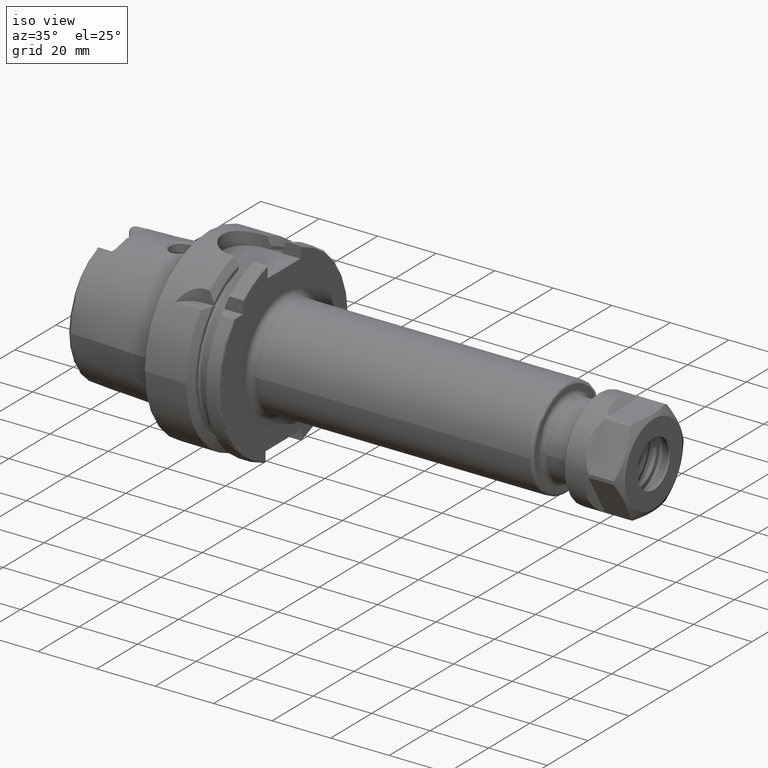
[diagram: clean part render]
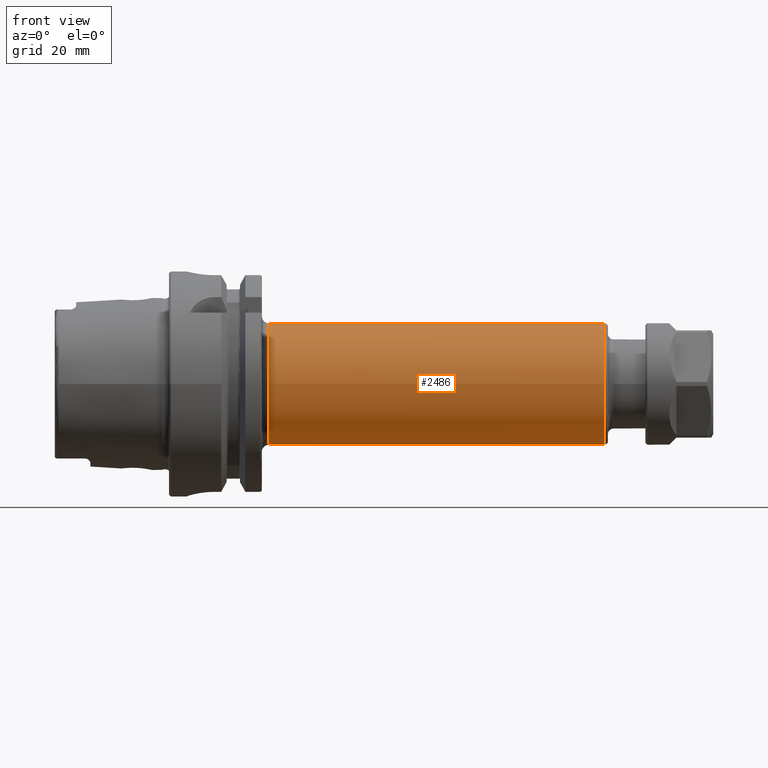
[diagram: tour spotlight — one face highlighted and labeled with its STEP entity id]
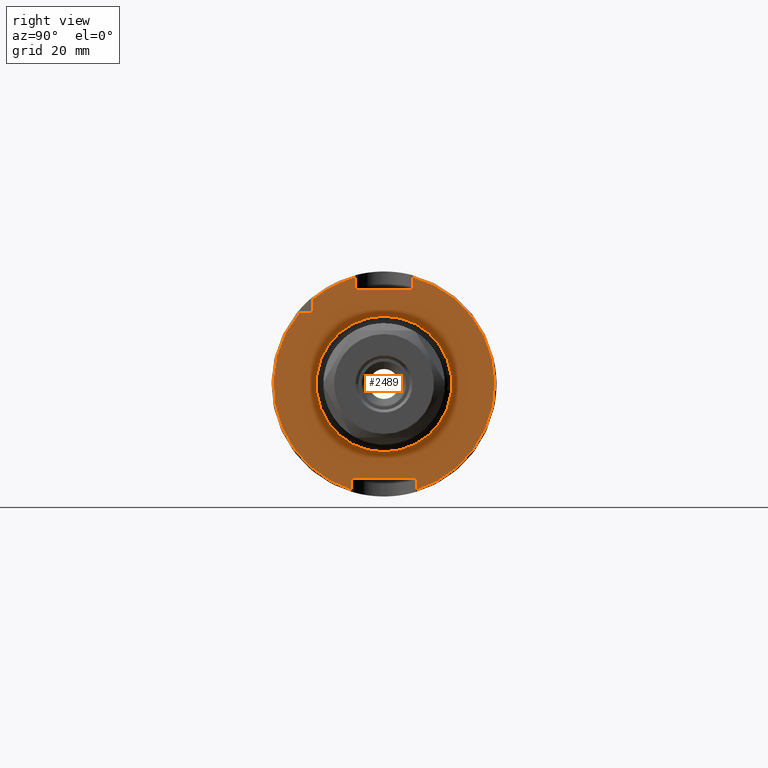
[diagram: tour spotlight — one face highlighted and labeled with its STEP entity id]
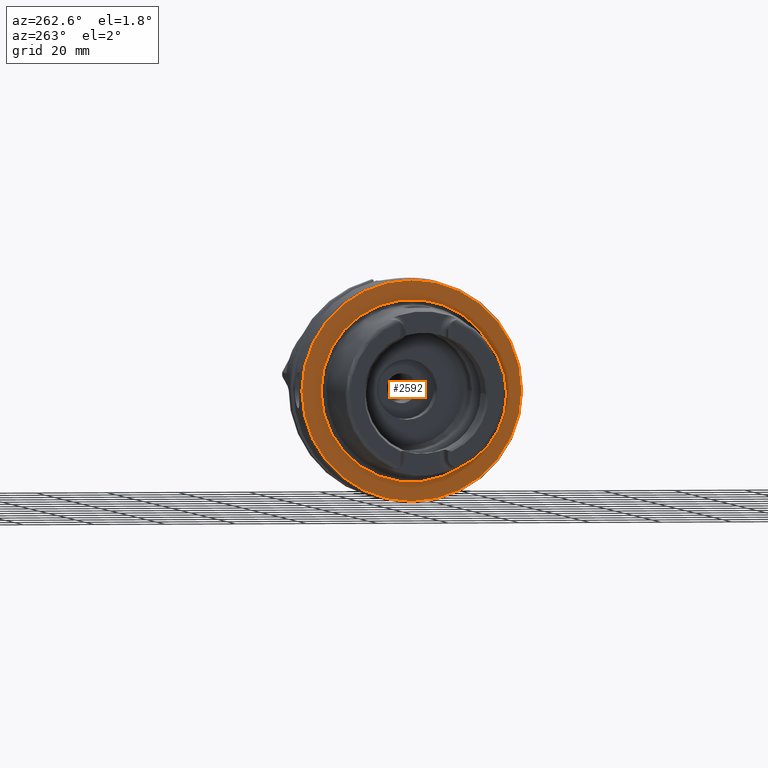
[diagram: tour spotlight — one face highlighted and labeled with its STEP entity id]
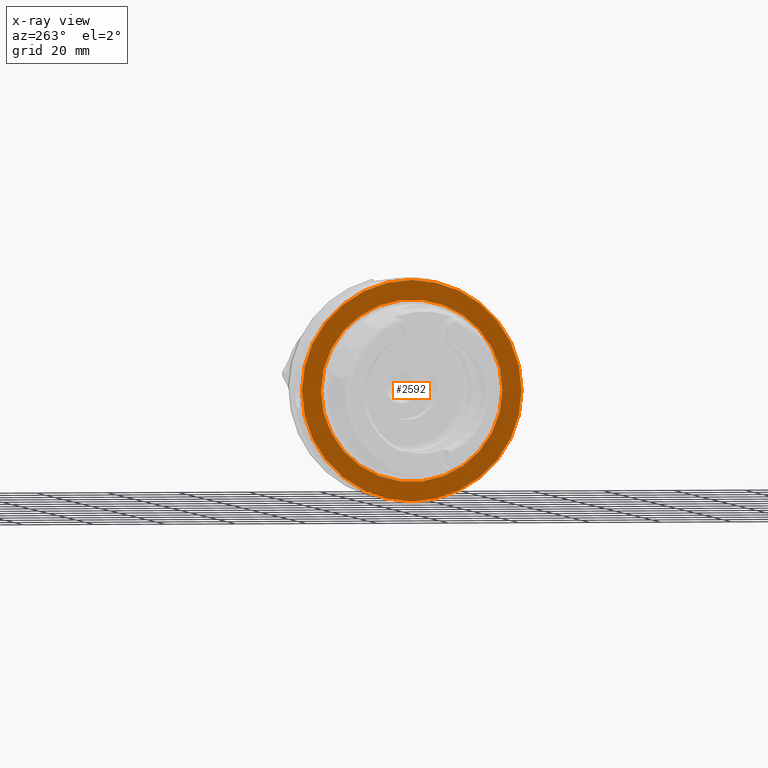
[diagram: x-ray of the same camera — body ghosted, this tour face saturated]
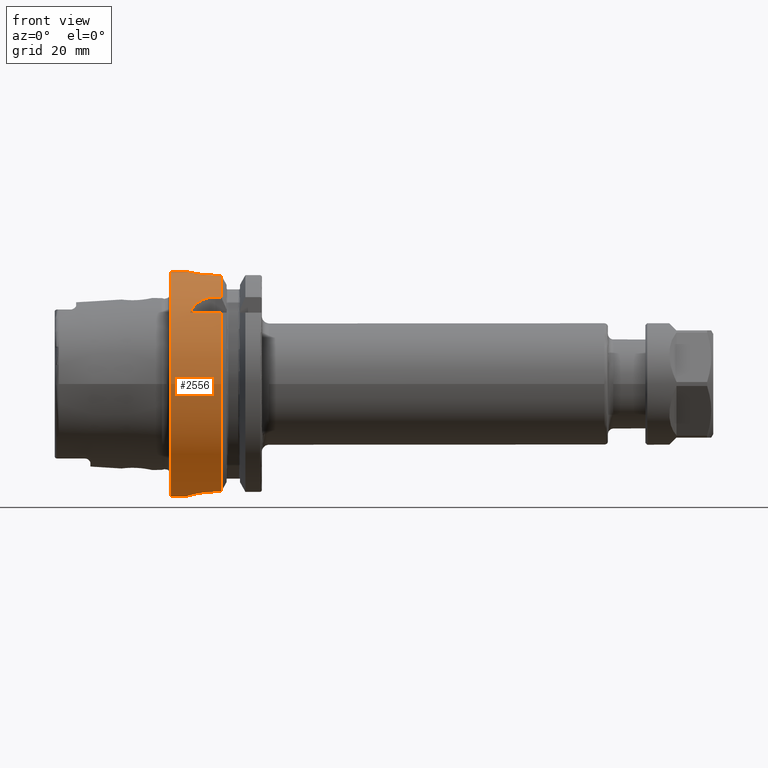
[diagram: tour spotlight — one face highlighted and labeled with its STEP entity id]
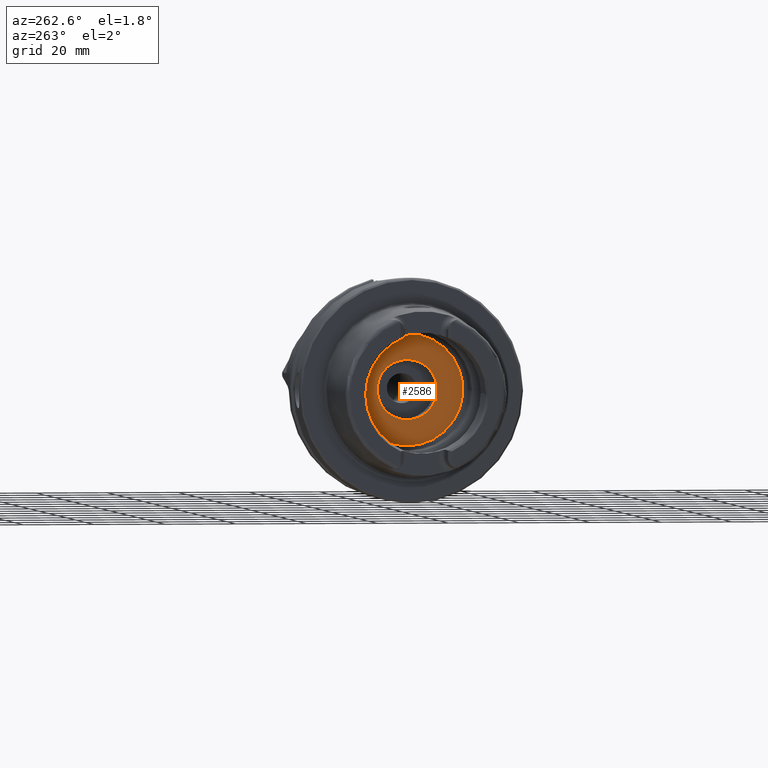
[diagram: tour spotlight — one face highlighted and labeled with its STEP entity id]
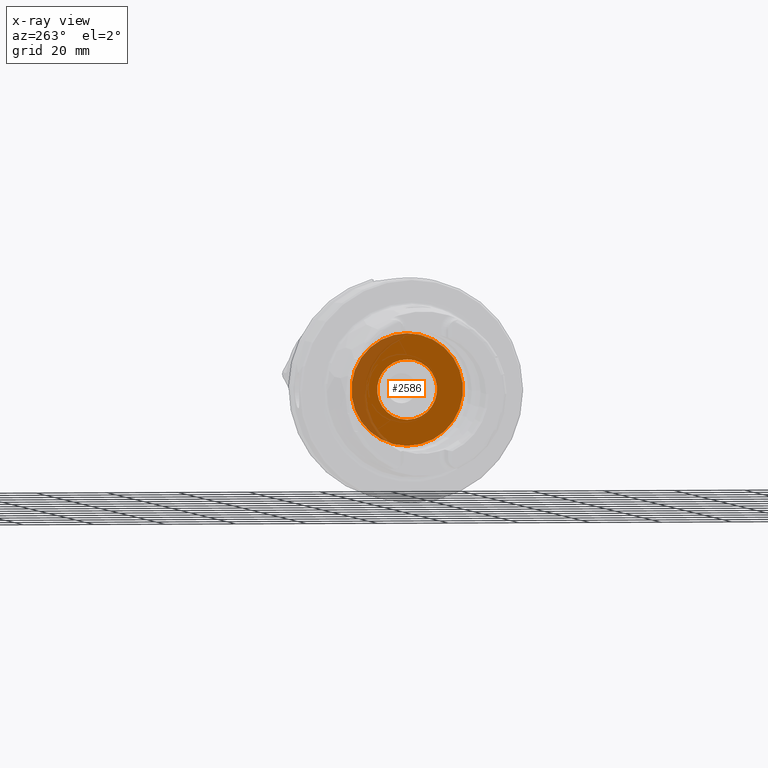
[diagram: x-ray of the same camera — body ghosted, this tour face saturated]
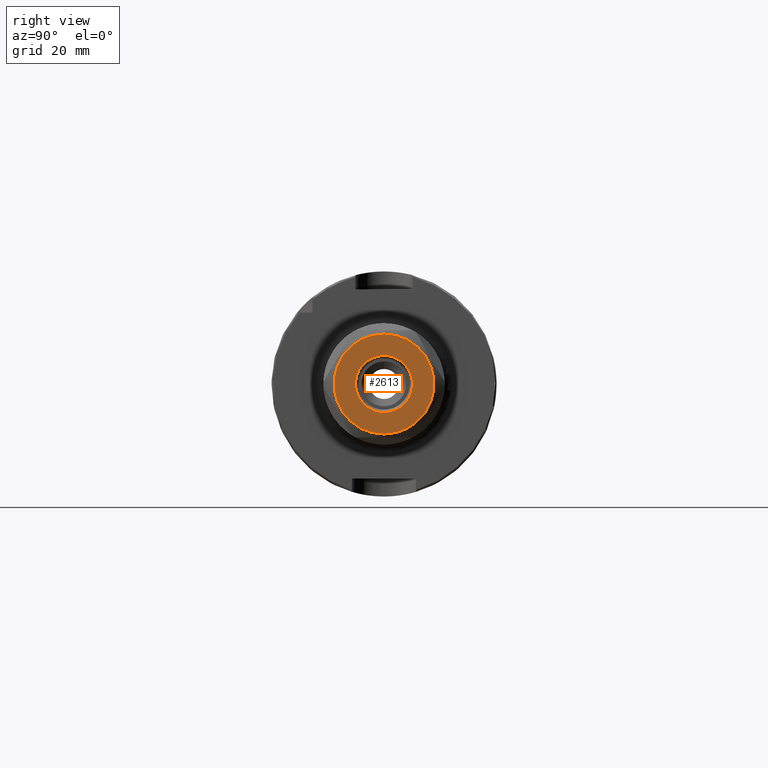
[diagram: tour spotlight — one face highlighted and labeled with its STEP entity id]
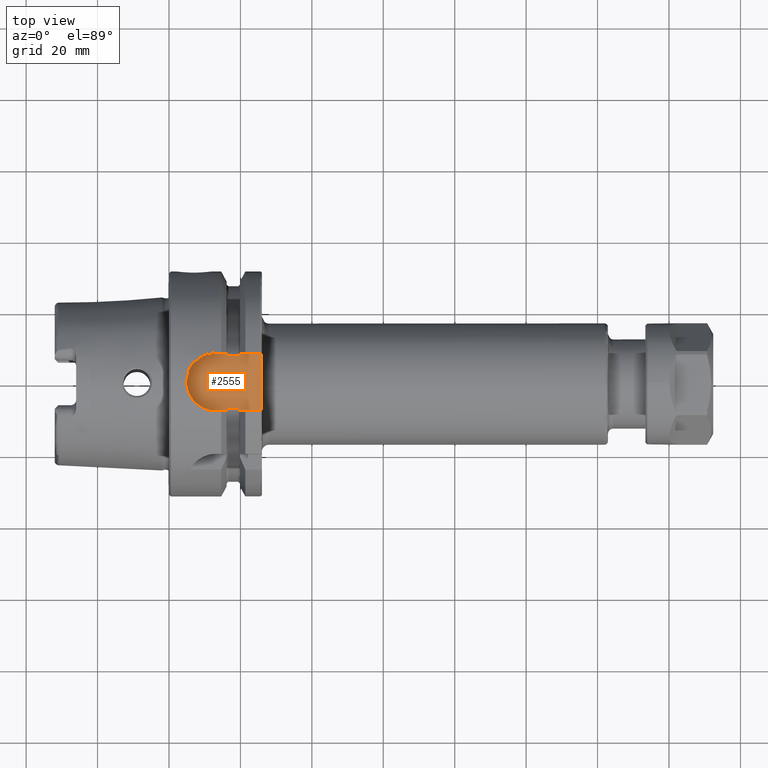
[diagram: tour spotlight — one face highlighted and labeled with its STEP entity id]
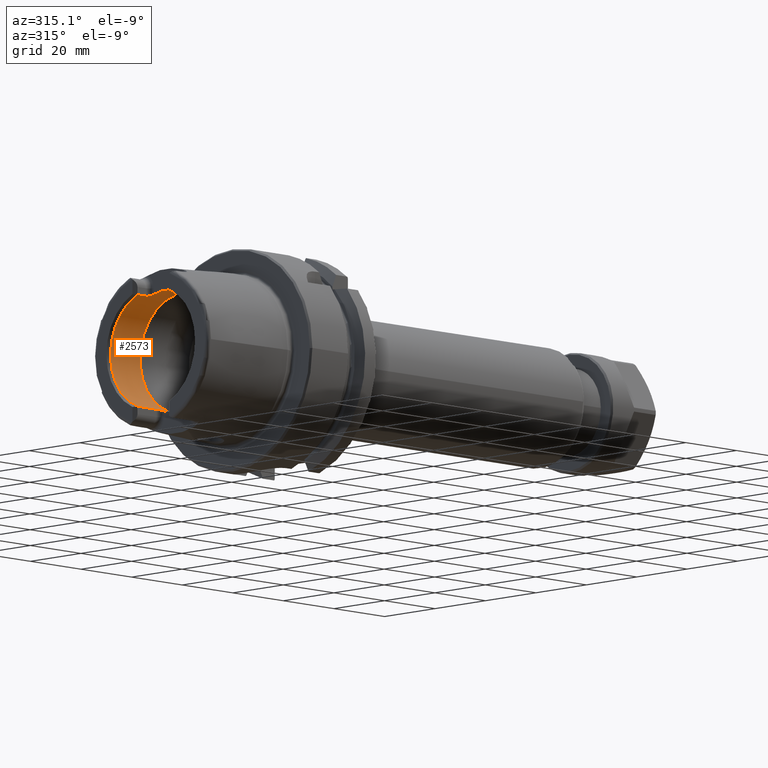
[diagram: tour spotlight — one face highlighted and labeled with its STEP entity id]
A machine part: a face-by-face anatomy tour. The part has 149 B-rep faces; the first image is the clean iso view, then the 8 largest visible faces are spotlighted one at a time (largest first), each with its STEP entity span.

Face 1 — front view, entity #2486. In plain terms, the highlighted cylindrical surface (bore or boss wall) has radius 17 mm, axis along (1, 0, 0).
Definition (entity closure, byte-faithful):
#289=FACE_OUTER_BOUND('',#440,.T.);
#440=EDGE_LOOP('',(#1699,#1700,#1701,#1702,#1703,#1704));
#602=LINE('',#3856,#738);
#738=VECTOR('',#3083,17.);
#882=CIRCLE('',#2722,17.);
#883=CIRCLE('',#2723,17.);
#885=CIRCLE('',#2727,17.);
#886=CIRCLE('',#2728,17.);
#1038=VERTEX_POINT('',#3846);
#1039=VERTEX_POINT('',#3848);
#1041=VERTEX_POINT('',#3855);
#1042=VERTEX_POINT('',#3857);
#1296=EDGE_CURVE('',#1038,#1039,#882,.T.);
#1297=EDGE_CURVE('',#1039,#1038,#883,.T.);
#1299=EDGE_CURVE('',#1039,#1041,#602,.T.);
#1300=EDGE_CURVE('',#1042,#1041,#885,.T.);
#1301=EDGE_CURVE('',#1041,#1042,#886,.T.);
#1699=ORIENTED_EDGE('',*,*,#1297,.F.);
#1700=ORIENTED_EDGE('',*,*,#1299,.T.);
#1701=ORIENTED_EDGE('',*,*,#1300,.F.);
#1702=ORIENTED_EDGE('',*,*,#1301,.F.);
#1703=ORIENTED_EDGE('',*,*,#1299,.F.);
#1704=ORIENTED_EDGE('',*,*,#1296,.F.);
#2440=CYLINDRICAL_SURFACE('',#2726,17.);
#2486=ADVANCED_FACE('',(#289),#2440,.T.);
#2722=AXIS2_PLACEMENT_3D('',#3849,#3073,#3074);
#2723=AXIS2_PLACEMENT_3D('',#3850,#3075,#3076);
#2726=AXIS2_PLACEMENT_3D('',#3854,#3081,#3082);
#2727=AXIS2_PLACEMENT_3D('',#3858,#3084,#3085);
#2728=AXIS2_PLACEMENT_3D('',#3859,#3086,#3087);
#3073=DIRECTION('center_axis',(1.,0.,0.));
#3074=DIRECTION('ref_axis',(0.,-1.,1.83697019872103E-16));
#3075=DIRECTION('center_axis',(1.,0.,0.));
#3076=DIRECTION('ref_axis',(0.,-1.,1.83697019872103E-16));
#3081=DIRECTION('center_axis',(1.,0.,0.));
#3082=DIRECTION('ref_axis',(0.,1.,0.));
#3083=DIRECTION('',(-1.,0.,0.));
#3084=DIRECTION('center_axis',(-1.,0.,0.));
#3085=DIRECTION('ref_axis',(0.,-1.,-1.22464679914735E-16));
#3086=DIRECTION('center_axis',(-1.,0.,0.));
#3087=DIRECTION('ref_axis',(0.,-1.,-1.22464679914735E-16));
#3846=CARTESIAN_POINT('',(121.9,-2.0818995585505E-15,17.));
#3848=CARTESIAN_POINT('',(121.9,-17.,-2.0818995585505E-15));
#3849=CARTESIAN_POINT('Origin',(121.9,0.,0.));
#3850=CARTESIAN_POINT('Origin',(121.9,0.,0.));
#3854=CARTESIAN_POINT('Origin',(74.45,0.,0.));
#3855=CARTESIAN_POINT('',(28.,-17.,-2.0818995585505E-15));
#3856=CARTESIAN_POINT('',(74.45,-17.,-2.0818995585505E-15));
#3857=CARTESIAN_POINT('',(28.,-2.0818995585505E-15,-17.));
#3858=CARTESIAN_POINT('Origin',(28.,0.,0.));
#3859=CARTESIAN_POINT('Origin',(28.,0.,0.));

Face 2 — right view, entity #2489. In plain terms, the highlighted planar face has unit normal (1, 0, 0).
Definition (entity closure, byte-faithful):
#184=FACE_BOUND('',#444,.T.);
#202=PLANE('',#2734);
#292=FACE_OUTER_BOUND('',#443,.T.);
#443=EDGE_LOOP('',(#1715,#1716,#1717,#1718,#1719,#1720,#1721,#1722,#1723,
#1724,#1725));
#444=EDGE_LOOP('',(#1726));
#603=LINE('',#3869,#739);
#604=LINE('',#3873,#740);
#605=LINE('',#3875,#741);
#606=LINE('',#3877,#742);
#607=LINE('',#3881,#743);
#608=LINE('',#3883,#744);
#609=LINE('',#3885,#745);
#610=LINE('',#3888,#746);
#739=VECTOR('',#3100,10.);
#740=VECTOR('',#3103,10.);
#741=VECTOR('',#3104,10.);
#742=VECTOR('',#3105,10.);
#743=VECTOR('',#3108,10.);
#744=VECTOR('',#3109,10.);
#745=VECTOR('',#3110,10.);
#746=VECTOR('',#3113,10.);
#889=CIRCLE('',#2733,19.);
#890=CIRCLE('',#2735,31.);
#891=CIRCLE('',#2736,31.);
#892=CIRCLE('',#2737,31.);
#1043=VERTEX_POINT('',#3863);
#1044=VERTEX_POINT('',#3867);
#1045=VERTEX_POINT('',#3868);
#1046=VERTEX_POINT('',#3870);
#1047=VERTEX_POINT('',#3872);
#1048=VERTEX_POINT('',#3874);
#1049=VERTEX_POINT('',#3876);
#1050=VERTEX_POINT('',#3878);
#1051=VERTEX_POINT('',#3880);
#1052=VERTEX_POINT('',#3882);
#1053=VERTEX_POINT('',#3884);
#1054=VERTEX_POINT('',#3886);
#1304=EDGE_CURVE('',#1043,#1043,#889,.T.);
#1305=EDGE_CURVE('',#1044,#1045,#603,.T.);
#1306=EDGE_CURVE('',#1045,#1046,#890,.T.);
#1307=EDGE_CURVE('',#1046,#1047,#604,.T.);
#1308=EDGE_CURVE('',#1047,#1048,#605,.T.);
#1309=EDGE_CURVE('',#1048,#1049,#606,.T.);
#1310=EDGE_CURVE('',#1049,#1050,#891,.T.);
#1311=EDGE_CURVE('',#1050,#1051,#607,.T.);
#1312=EDGE_CURVE('',#1051,#1052,#608,.T.);
#1313=EDGE_CURVE('',#1052,#1053,#609,.T.);
#1314=EDGE_CURVE('',#1053,#1054,#892,.T.);
#1315=EDGE_CURVE('',#1054,#1044,#610,.T.);
#1715=ORIENTED_EDGE('',*,*,#1305,.T.);
#1716=ORIENTED_EDGE('',*,*,#1306,.T.);
#1717=ORIENTED_EDGE('',*,*,#1307,.T.);
#1718=ORIENTED_EDGE('',*,*,#1308,.T.);
#1719=ORIENTED_EDGE('',*,*,#1309,.T.);
#1720=ORIENTED_EDGE('',*,*,#1310,.T.);
#1721=ORIENTED_EDGE('',*,*,#1311,.T.);
#1722=ORIENTED_EDGE('',*,*,#1312,.T.);
#1723=ORIENTED_EDGE('',*,*,#1313,.T.);
#1724=ORIENTED_EDGE('',*,*,#1314,.T.);
#1725=ORIENTED_EDGE('',*,*,#1315,.T.);
#1726=ORIENTED_EDGE('',*,*,#1304,.F.);
#2489=ADVANCED_FACE('',(#292,#184),#202,.T.);
#2733=AXIS2_PLACEMENT_3D('',#3865,#3096,#3097);
#2734=AXIS2_PLACEMENT_3D('',#3866,#3098,#3099);
#2735=AXIS2_PLACEMENT_3D('',#3871,#3101,#3102);
#2736=AXIS2_PLACEMENT_3D('',#3879,#3106,#3107);
#2737=AXIS2_PLACEMENT_3D('',#3887,#3111,#3112);
#3096=DIRECTION('center_axis',(1.,0.,0.));
#3097=DIRECTION('ref_axis',(0.,-1.,-1.22464679914735E-16));
#3098=DIRECTION('center_axis',(1.,0.,0.));
#3099=DIRECTION('ref_axis',(0.,0.,-1.));
#3100=DIRECTION('',(0.,-1.,0.));
#3101=DIRECTION('center_axis',(1.,0.,0.));
#3102=DIRECTION('ref_axis',(0.,0.,-1.));
#3103=DIRECTION('',(0.,0.,1.));
#3104=DIRECTION('',(0.,1.,0.));
#3105=DIRECTION('',(0.,0.,-1.));
#3106=DIRECTION('center_axis',(1.,0.,0.));
#3107=DIRECTION('ref_axis',(0.,0.,-1.));
#3108=DIRECTION('',(0.,0.,-1.));
#3109=DIRECTION('',(0.,-1.,0.));
#3110=DIRECTION('',(0.,0.,1.));
#3111=DIRECTION('center_axis',(1.,0.,0.));
#3112=DIRECTION('ref_axis',(0.,0.,-1.));
#3113=DIRECTION('',(0.,0.,-1.));
#3863=CARTESIAN_POINT('',(26.,-2.32682891837997E-15,-19.));
#3865=CARTESIAN_POINT('Origin',(26.,0.,0.));
#3866=CARTESIAN_POINT('Origin',(26.,0.,0.));
#3867=CARTESIAN_POINT('',(26.,-20.,20.));
#3868=CARTESIAN_POINT('',(26.,-23.685438564654,20.));
#3869=CARTESIAN_POINT('',(26.,-12.,20.));
#3870=CARTESIAN_POINT('',(26.,-9.,-29.6647939483827));
#3871=CARTESIAN_POINT('Origin',(26.,0.,0.));
#3872=CARTESIAN_POINT('',(26.,-9.,-26.5));
#3873=CARTESIAN_POINT('',(26.,-9.,-13.25));
#3874=CARTESIAN_POINT('',(26.,9.,-26.5));
#3875=CARTESIAN_POINT('',(26.,1.94289029309402E-15,-26.5));
#3876=CARTESIAN_POINT('',(26.,9.,-29.6647939483827));
#3877=CARTESIAN_POINT('',(26.,9.,-13.25));
#3878=CARTESIAN_POINT('',(26.,8.,29.9499582637439));
#3879=CARTESIAN_POINT('Origin',(26.,0.,0.));
#3880=CARTESIAN_POINT('',(26.,8.,26.5));
#3881=CARTESIAN_POINT('',(26.,8.,13.25));
#3882=CARTESIAN_POINT('',(26.,-8.,26.5));
#3883=CARTESIAN_POINT('',(26.,5.55111512312578E-16,26.5));
#3884=CARTESIAN_POINT('',(26.,-8.,29.9499582637439));
#3885=CARTESIAN_POINT('',(26.,-8.,13.25));
#3886=CARTESIAN_POINT('',(26.,-20.,23.685438564654));
#3887=CARTESIAN_POINT('Origin',(26.,0.,0.));
#3888=CARTESIAN_POINT('',(26.,-20.,10.));

Face 3 — auxiliary view, entity #2592. An x-ray twin of the same camera follows (body ghosted, this face saturated) — the face is partly hidden behind the body. In plain terms, the highlighted planar face has unit normal (-1, -0, -0).
Definition (entity closure, byte-faithful):
#192=FACE_BOUND('',#555,.T.);
#241=PLANE('',#2947);
#395=FACE_OUTER_BOUND('',#554,.T.);
#554=EDGE_LOOP('',(#2280));
#555=EDGE_LOOP('',(#2281));
#993=CIRCLE('',#2946,25.5879092835167);
#994=CIRCLE('',#2948,31.);
#1227=VERTEX_POINT('',#5259);
#1228=VERTEX_POINT('',#5263);
#1587=EDGE_CURVE('',#1227,#1227,#993,.T.);
#1588=EDGE_CURVE('',#1228,#1228,#994,.T.);
#2280=ORIENTED_EDGE('',*,*,#1588,.F.);
#2281=ORIENTED_EDGE('',*,*,#1587,.T.);
#2592=ADVANCED_FACE('',(#395,#192),#241,.T.);
#2946=AXIS2_PLACEMENT_3D('',#5261,#3621,#3622);
#2947=AXIS2_PLACEMENT_3D('',#5262,#3623,#3624);
#2948=AXIS2_PLACEMENT_3D('',#5264,#3625,#3626);
#3621=DIRECTION('center_axis',(1.,0.,0.));
#3622=DIRECTION('ref_axis',(0.,0.,-1.));
#3623=DIRECTION('center_axis',(-1.,0.,0.));
#3624=DIRECTION('ref_axis',(0.,0.,1.));
#3625=DIRECTION('center_axis',(1.,0.,0.));
#3626=DIRECTION('ref_axis',(0.,0.,-1.));
#5259=CARTESIAN_POINT('',(-3.55618312575245E-16,-25.5879092835167,-3.13361512009315E-15));
#5261=CARTESIAN_POINT('Origin',(0.,0.,0.));
#5262=CARTESIAN_POINT('Origin',(0.,31.,0.));
#5263=CARTESIAN_POINT('',(-5.89805981832114E-16,-31.,-3.7964050773568E-15));
#5264=CARTESIAN_POINT('Origin',(0.,0.,0.));

Face 4 — front view, entity #2556. In plain terms, the highlighted cylindrical surface (bore or boss wall) has radius 31.5 mm, axis along (1, 0, 0).
Definition (entity closure, byte-faithful):
#110=B_SPLINE_CURVE_WITH_KNOTS('',3,(#4616,#4617,#4618,#4619,#4620,#4621,
#4622,#4623,#4624,#4625,#4626,#4627,#4628,#4629,#4630,#4631,#4632,#4633,
#4634,#4635,#4636,#4637,#4638,#4639,#4640,#4641),.UNSPECIFIED.,.F.,.F.,
(4,2,2,2,2,2,2,2,2,2,2,2,4),(0.,0.188688694287612,0.377377388575223,0.56606194688798,
0.754746505200737,0.943431063513494,1.13211562182625,1.32080431611386,1.50949301040147,
1.69818170468909,1.8868703989767,2.07555495728945,2.26423951560221),
 .UNSPECIFIED.);
#111=B_SPLINE_CURVE_WITH_KNOTS('',3,(#4642,#4643,#4644,#4645,#4646,#4647,
#4648,#4649,#4650,#4651),.UNSPECIFIED.,.F.,.F.,(4,2,2,2,4),(2.26423951560221,
2.45292407391497,2.64160863222773,2.83029732651534,3.01898602080295),
 .UNSPECIFIED.);
#114=B_SPLINE_CURVE_WITH_KNOTS('',3,(#4708,#4709,#4710,#4711,#4712,#4713,
#4714,#4715,#4716,#4717,#4718,#4719),.UNSPECIFIED.,.F.,.F.,(4,2,2,2,2,4),
(1.1085154204615,1.31979218709236,1.52798350480179,1.73617482251122,1.90421770126337,
2.07226058001552),.UNSPECIFIED.);
#124=B_SPLINE_CURVE_WITH_KNOTS('',3,(#4888,#4889,#4890,#4891,#4892,#4893,
#4894,#4895,#4896,#4897),.UNSPECIFIED.,.F.,.F.,(4,2,2,2,4),(1.20927420824097,
1.5131742975437,1.81707438684643,2.12000449915965,2.42293461147287),
 .UNSPECIFIED.);
#127=B_SPLINE_CURVE_WITH_KNOTS('',3,(#4923,#4924,#4925,#4926,#4927,#4928,
#4929,#4930,#4931,#4932),.UNSPECIFIED.,.F.,.F.,(4,2,2,2,4),(0.,0.30293011231322,
0.605860224626439,0.90976031392917,1.2136604032319),.UNSPECIFIED.);
#137=B_SPLINE_CURVE_WITH_KNOTS('',3,(#5078,#5079,#5080,#5081,#5082,#5083,
#5084,#5085,#5086,#5087,#5088,#5089,#5090,#5091,#5092,#5093,#5094,#5095),
 .UNSPECIFIED.,.F.,.F.,(4,2,2,2,2,2,2,2,4),(0.,0.302805879979318,0.605611759958635,
0.908372461246501,1.21113316253437,1.51389386382223,1.8166545651101,2.11946044508942,
2.42226632506874),.UNSPECIFIED.);
#188=FACE_BOUND('',#515,.T.);
#359=FACE_OUTER_BOUND('',#514,.T.);
#514=EDGE_LOOP('',(#2097,#2098,#2099,#2100,#2101,#2102,#2103,#2104,#2105,
#2106,#2107,#2108,#2109,#2110,#2111,#2112,#2113,#2114));
#515=EDGE_LOOP('',(#2115,#2116));
#648=LINE('',#4683,#784);
#653=LINE('',#4728,#789);
#671=LINE('',#4905,#807);
#672=LINE('',#4909,#808);
#684=LINE('',#5072,#820);
#687=LINE('',#5102,#823);
#689=LINE('',#5108,#825);
#784=VECTOR('',#3283,10.);
#789=VECTOR('',#3294,10.);
#807=VECTOR('',#3358,10.);
#808=VECTOR('',#3361,10.);
#820=VECTOR('',#3439,10.);
#823=VECTOR('',#3450,10.);
#825=VECTOR('',#3458,31.5);
#928=CIRCLE('',#2812,31.5);
#929=CIRCLE('',#2813,31.5);
#937=CIRCLE('',#2833,31.5);
#938=CIRCLE('',#2835,31.5);
#952=CIRCLE('',#2870,31.5);
#953=CIRCLE('',#2871,31.5);
#1128=VERTEX_POINT('',#4613);
#1129=VERTEX_POINT('',#4615);
#1137=VERTEX_POINT('',#4680);
#1138=VERTEX_POINT('',#4682);
#1142=VERTEX_POINT('',#4707);
#1144=VERTEX_POINT('',#4724);
#1149=VERTEX_POINT('',#4740);
#1150=VERTEX_POINT('',#4742);
#1175=VERTEX_POINT('',#4886);
#1176=VERTEX_POINT('',#4887);
#1177=VERTEX_POINT('',#4907);
#1178=VERTEX_POINT('',#4908);
#1181=VERTEX_POINT('',#4922);
#1182=VERTEX_POINT('',#4937);
#1198=VERTEX_POINT('',#5069);
#1199=VERTEX_POINT('',#5071);
#1200=VERTEX_POINT('',#5077);
#1202=VERTEX_POINT('',#5107);
#1415=EDGE_CURVE('',#1129,#1128,#110,.T.);
#1416=EDGE_CURVE('',#1128,#1129,#111,.T.);
#1425=EDGE_CURVE('',#1138,#1137,#648,.T.);
#1431=EDGE_CURVE('',#1137,#1142,#114,.T.);
#1435=EDGE_CURVE('',#1142,#1144,#653,.T.);
#1441=EDGE_CURVE('',#1138,#1149,#928,.T.);
#1442=EDGE_CURVE('',#1149,#1150,#929,.T.);
#1476=EDGE_CURVE('',#1175,#1176,#124,.T.);
#1480=EDGE_CURVE('',#1176,#1150,#671,.T.);
#1481=EDGE_CURVE('',#1177,#1178,#672,.T.);
#1486=EDGE_CURVE('',#1178,#1181,#127,.T.);
#1488=EDGE_CURVE('',#1181,#1175,#937,.T.);
#1489=EDGE_CURVE('',#1177,#1182,#938,.T.);
#1521=EDGE_CURVE('',#1199,#1198,#684,.T.);
#1523=EDGE_CURVE('',#1198,#1200,#137,.T.);
#1527=EDGE_CURVE('',#1200,#1182,#687,.T.);
#1529=EDGE_CURVE('',#1199,#1144,#952,.T.);
#1530=EDGE_CURVE('',#1149,#1202,#689,.T.);
#1531=EDGE_CURVE('',#1202,#1202,#953,.T.);
#2097=ORIENTED_EDGE('',*,*,#1435,.T.);
#2098=ORIENTED_EDGE('',*,*,#1529,.F.);
#2099=ORIENTED_EDGE('',*,*,#1521,.T.);
#2100=ORIENTED_EDGE('',*,*,#1523,.T.);
#2101=ORIENTED_EDGE('',*,*,#1527,.T.);
#2102=ORIENTED_EDGE('',*,*,#1489,.F.);
#2103=ORIENTED_EDGE('',*,*,#1481,.T.);
#2104=ORIENTED_EDGE('',*,*,#1486,.T.);
#2105=ORIENTED_EDGE('',*,*,#1488,.T.);
#2106=ORIENTED_EDGE('',*,*,#1476,.T.);
#2107=ORIENTED_EDGE('',*,*,#1480,.T.);
#2108=ORIENTED_EDGE('',*,*,#1442,.F.);
#2109=ORIENTED_EDGE('',*,*,#1530,.T.);
#2110=ORIENTED_EDGE('',*,*,#1531,.T.);
#2111=ORIENTED_EDGE('',*,*,#1530,.F.);
#2112=ORIENTED_EDGE('',*,*,#1441,.F.);
#2113=ORIENTED_EDGE('',*,*,#1425,.T.);
#2114=ORIENTED_EDGE('',*,*,#1431,.T.);
#2115=ORIENTED_EDGE('',*,*,#1415,.T.);
#2116=ORIENTED_EDGE('',*,*,#1416,.T.);
#2459=CYLINDRICAL_SURFACE('',#2869,31.5);
#2556=ADVANCED_FACE('',(#359,#188),#2459,.T.);
#2812=AXIS2_PLACEMENT_3D('',#4741,#3307,#3308);
#2813=AXIS2_PLACEMENT_3D('',#4743,#3309,#3310);
#2833=AXIS2_PLACEMENT_3D('',#4935,#3369,#3370);
#2835=AXIS2_PLACEMENT_3D('',#4938,#3373,#3374);
#2869=AXIS2_PLACEMENT_3D('',#5105,#3454,#3455);
#2870=AXIS2_PLACEMENT_3D('',#5106,#3456,#3457);
#2871=AXIS2_PLACEMENT_3D('',#5109,#3459,#3460);
#3283=DIRECTION('',(-1.,0.,0.));
#3294=DIRECTION('',(1.,0.,0.));
#3307=DIRECTION('center_axis',(1.,0.,0.));
#3308=DIRECTION('ref_axis',(0.,0.,-1.));
#3309=DIRECTION('center_axis',(1.,0.,0.));
#3310=DIRECTION('ref_axis',(0.,0.,-1.));
#3358=DIRECTION('',(1.,0.,0.));
#3361=DIRECTION('',(-1.,0.,0.));
#3369=DIRECTION('center_axis',(-1.,0.,0.));
#3370=DIRECTION('ref_axis',(0.,1.,0.));
#3373=DIRECTION('center_axis',(1.,0.,0.));
#3374=DIRECTION('ref_axis',(0.,0.,-1.));
#3439=DIRECTION('',(-1.,0.,0.));
#3450=DIRECTION('',(1.,0.,0.));
#3454=DIRECTION('center_axis',(1.,0.,0.));
#3455=DIRECTION('ref_axis',(0.,1.,0.));
#3456=DIRECTION('center_axis',(1.,0.,0.));
#3457=DIRECTION('ref_axis',(0.,0.,-1.));
#3458=DIRECTION('',(-1.,0.,0.));
#3459=DIRECTION('center_axis',(1.,0.,0.));
#3460=DIRECTION('ref_axis',(0.,0.,-1.));
#4613=CARTESIAN_POINT('',(12.,31.5,-6.12323399573677E-16));
#4615=CARTESIAN_POINT('',(7.,31.100643080168,5.));
#4616=CARTESIAN_POINT('Ctrl Pts',(7.,31.100643080168,5.));
#4617=CARTESIAN_POINT('Ctrl Pts',(6.37103768570796,31.100643080168,5.));
#4618=CARTESIAN_POINT('Ctrl Pts',(5.70089281579202,31.1216953112949,4.87408354368814));
#4619=CARTESIAN_POINT('Ctrl Pts',(4.46931934300962,31.1973810209855,4.36348784122736));
#4620=CARTESIAN_POINT('Ctrl Pts',(3.90779781350673,31.2508828501623,3.97886562537221));
#4621=CARTESIAN_POINT('Ctrl Pts',(3.021144092268,31.3510329557602,3.09221190413348));
#4622=CARTESIAN_POINT('Ctrl Pts',(2.63651425348544,31.4042391414288,2.5306861925578));
#4623=CARTESIAN_POINT('Ctrl Pts',(2.12591301120586,31.4792463697936,1.29909839144709));
#4624=CARTESIAN_POINT('Ctrl Pts',(2.,31.5,0.62894852770919));
#4625=CARTESIAN_POINT('Ctrl Pts',(2.,31.5,-0.62894852770919));
#4626=CARTESIAN_POINT('Ctrl Pts',(2.12591301120586,31.4792463697936,-1.29909839144709));
#4627=CARTESIAN_POINT('Ctrl Pts',(2.63651425348544,31.4042391414288,-2.5306861925578));
#4628=CARTESIAN_POINT('Ctrl Pts',(3.021144092268,31.3510329557602,-3.09221190413348));
#4629=CARTESIAN_POINT('Ctrl Pts',(3.90779781350673,31.2508828501623,-3.97886562537221));
#4630=CARTESIAN_POINT('Ctrl Pts',(4.46931934300962,31.1973810209855,-4.36348784122736));
#4631=CARTESIAN_POINT('Ctrl Pts',(5.70089281579202,31.1216953112949,-4.87408354368814));
#4632=CARTESIAN_POINT('Ctrl Pts',(6.37103768570796,31.100643080168,-5.));
#4633=CARTESIAN_POINT('Ctrl Pts',(7.62896231429204,31.100643080168,-5.));
#4634=CARTESIAN_POINT('Ctrl Pts',(8.29910718420798,31.1216953112949,-4.87408354368814));
#4635=CARTESIAN_POINT('Ctrl Pts',(9.53068065699038,31.1973810209855,-4.36348784122736));
#4636=CARTESIAN_POINT('Ctrl Pts',(10.0922021864933,31.2508828501623,-3.97886562537221));
#4637=CARTESIAN_POINT('Ctrl Pts',(10.978855907732,31.3510329557602,-3.09221190413348));
#4638=CARTESIAN_POINT('Ctrl Pts',(11.3634857465146,31.4042391414288,-2.53068619255779));
#4639=CARTESIAN_POINT('Ctrl Pts',(11.8740869887941,31.4792463697936,-1.29909839144708));
#4640=CARTESIAN_POINT('Ctrl Pts',(12.,31.5,-0.62894852770919));
#4641=CARTESIAN_POINT('Ctrl Pts',(12.,31.5,-4.16333634234434E-16));
#4642=CARTESIAN_POINT('Ctrl Pts',(12.,31.5,-1.11022302462516E-15));
#4643=CARTESIAN_POINT('Ctrl Pts',(12.,31.5,0.628948527709188));
#4644=CARTESIAN_POINT('Ctrl Pts',(11.8740869887941,31.4792463697936,1.29909839144708));
#4645=CARTESIAN_POINT('Ctrl Pts',(11.3634857465146,31.4042391414288,2.53068619255779));
#4646=CARTESIAN_POINT('Ctrl Pts',(10.978855907732,31.3510329557602,3.09221190413348));
#4647=CARTESIAN_POINT('Ctrl Pts',(10.0922021864933,31.2508828501623,3.97886562537221));
#4648=CARTESIAN_POINT('Ctrl Pts',(9.53068065699038,31.1973810209855,4.36348784122736));
#4649=CARTESIAN_POINT('Ctrl Pts',(8.29910718420798,31.1216953112949,4.87408354368814));
#4650=CARTESIAN_POINT('Ctrl Pts',(7.62896231429204,31.100643080168,5.));
#4651=CARTESIAN_POINT('Ctrl Pts',(7.,31.100643080168,5.));
#4680=CARTESIAN_POINT('',(5.88828609634419,-24.3361870472759,20.));
#4682=CARTESIAN_POINT('',(14.6225009252407,-24.3361870472759,20.));
#4683=CARTESIAN_POINT('',(7.56125046262034,-24.3361870472759,20.));
#4707=CARTESIAN_POINT('',(13.,-20.,24.3361870472759));
#4708=CARTESIAN_POINT('Ctrl Pts',(5.88828609634419,-24.3361870472759,20.));
#4709=CARTESIAN_POINT('Ctrl Pts',(6.11069532820048,-23.9044753723342,20.5253108035937));
#4710=CARTESIAN_POINT('Ctrl Pts',(6.38325999044306,-23.4713523250807,21.0173865932788));
#4711=CARTESIAN_POINT('Ctrl Pts',(7.044898076458,-22.6317364276543,21.9186738868096));
#4712=CARTESIAN_POINT('Ctrl Pts',(7.46714468561685,-22.1861072682036,22.3682920878559));
#4713=CARTESIAN_POINT('Ctrl Pts',(8.46725531403812,-21.3767026700071,23.143042657319));
#4714=CARTESIAN_POINT('Ctrl Pts',(9.04646427720221,-21.0147449478223,23.4683362269255));
#4715=CARTESIAN_POINT('Ctrl Pts',(10.1145001432702,-20.5200081116516,23.9011603796022));
#4716=CARTESIAN_POINT('Ctrl Pts',(10.670823971716,-20.3234249831704,24.0673462447194));
#4717=CARTESIAN_POINT('Ctrl Pts',(11.8334528721306,-20.063121855676,24.2847667849476));
#4718=CARTESIAN_POINT('Ctrl Pts',(12.4398570708262,-20.,24.3361870472759));
#4719=CARTESIAN_POINT('Ctrl Pts',(13.,-20.,24.3361870472759));
#4724=CARTESIAN_POINT('',(14.6225009252407,-20.,24.3361870472759));
#4728=CARTESIAN_POINT('',(7.56125046262035,-20.,24.3361870472759));
#4740=CARTESIAN_POINT('',(14.6225009252407,-31.5,-3.85763741731416E-15));
#4741=CARTESIAN_POINT('Origin',(14.6225009252407,0.,0.));
#4742=CARTESIAN_POINT('',(14.6225009252407,-9.,-30.1869176962472));
#4743=CARTESIAN_POINT('Origin',(14.6225009252407,0.,0.));
#4886=CARTESIAN_POINT('',(5.,-0.999999999999999,-31.4841229828623));
#4887=CARTESIAN_POINT('',(13.,-9.,-30.1869176962472));
#4888=CARTESIAN_POINT('Ctrl Pts',(5.,-0.999999999999997,-31.4841229828623));
#4889=CARTESIAN_POINT('Ctrl Pts',(5.,-2.01248971281587,-31.4519642432536));
#4890=CARTESIAN_POINT('Ctrl Pts',(5.2037733306458,-3.08756640398171,-31.3640631381934));
#4891=CARTESIAN_POINT('Ctrl Pts',(6.02370102555041,-5.05836608044729,-31.1070804719497));
#4892=CARTESIAN_POINT('Ctrl Pts',(6.63955745341061,-5.95454409907418,-30.9405445582004));
#4893=CARTESIAN_POINT('Ctrl Pts',(8.05472493283182,-7.36715009628369,-30.6348764237341));
#4894=CARTESIAN_POINT('Ctrl Pts',(8.9496642215883,-7.98063403850821,-30.4752177477269));
#4895=CARTESIAN_POINT('Ctrl Pts',(10.9171740660538,-8.79719825889174,-30.2496070227108));
#4896=CARTESIAN_POINT('Ctrl Pts',(11.9902329589559,-9.,-30.1869176962472));
#4897=CARTESIAN_POINT('Ctrl Pts',(13.,-9.,-30.1869176962472));
#4905=CARTESIAN_POINT('',(7.56125046262035,-8.99999999999999,-30.1869176962472));
#4907=CARTESIAN_POINT('',(14.6225009252407,9.,-30.1869176962472));
#4908=CARTESIAN_POINT('',(13.,9.00000000000001,-30.1869176962472));
#4909=CARTESIAN_POINT('',(7.56125046262034,9.00000000000001,-30.1869176962472));
#4922=CARTESIAN_POINT('',(5.,1.,-31.4841229828623));
#4923=CARTESIAN_POINT('Ctrl Pts',(13.,9.00000000000001,-30.1869176962472));
#4924=CARTESIAN_POINT('Ctrl Pts',(11.9902329589559,9.00000000000001,-30.1869176962472));
#4925=CARTESIAN_POINT('Ctrl Pts',(10.9171740660538,8.79719825889175,-30.2496070227108));
#4926=CARTESIAN_POINT('Ctrl Pts',(8.9496642215883,7.98063403850822,-30.4752177477269));
#4927=CARTESIAN_POINT('Ctrl Pts',(8.05472493283182,7.3671500962837,-30.6348764237341));
#4928=CARTESIAN_POINT('Ctrl Pts',(6.63955745341061,5.95454409907419,-30.9405445582004));
#4929=CARTESIAN_POINT('Ctrl Pts',(6.02370102555041,5.0583660804473,-31.1070804719497));
#4930=CARTESIAN_POINT('Ctrl Pts',(5.2037733306458,3.08756640398172,-31.3640631381934));
#4931=CARTESIAN_POINT('Ctrl Pts',(5.,2.01248971281588,-31.4519642432536));
#4932=CARTESIAN_POINT('Ctrl Pts',(5.,1.00000000000001,-31.4841229828623));
#4935=CARTESIAN_POINT('Origin',(5.,0.,0.));
#4937=CARTESIAN_POINT('',(14.6225009252407,8.,30.4671954731642));
#4938=CARTESIAN_POINT('Origin',(14.6225009252407,0.,0.));
#5069=CARTESIAN_POINT('',(13.,-8.,30.4671954731642));
#5071=CARTESIAN_POINT('',(14.6225009252407,-8.,30.4671954731642));
#5072=CARTESIAN_POINT('',(7.56125046262034,-8.,30.4671954731642));
#5077=CARTESIAN_POINT('',(13.,8.,30.4671954731642));
#5078=CARTESIAN_POINT('Ctrl Pts',(13.,-8.,30.4671954731643));
#5079=CARTESIAN_POINT('Ctrl Pts',(11.9906470667356,-8.,30.4671954731643));
#5080=CARTESIAN_POINT('Ctrl Pts',(10.9172075930168,-7.79737202490167,30.5225803085525));
#5081=CARTESIAN_POINT('Ctrl Pts',(8.94758399331801,-6.97961067526075,30.719895002943));
#5082=CARTESIAN_POINT('Ctrl Pts',(8.05099322370438,-6.36470172268915,30.8586830127239));
#5083=CARTESIAN_POINT('Ctrl Pts',(6.63540388828045,-4.94911238726521,31.1170994373341));
#5084=CARTESIAN_POINT('Ctrl Pts',(6.02041263015313,-4.05247770930662,31.2539072689014));
#5085=CARTESIAN_POINT('Ctrl Pts',(5.20259114887399,-2.08269813865027,31.4466478906396));
#5086=CARTESIAN_POINT('Ctrl Pts',(5.,-1.00920233762622,31.5));
#5087=CARTESIAN_POINT('Ctrl Pts',(5.,1.00920233762622,31.5));
#5088=CARTESIAN_POINT('Ctrl Pts',(5.20259114887399,2.08269813865027,31.4466478906396));
#5089=CARTESIAN_POINT('Ctrl Pts',(6.02041263015313,4.05247770930662,31.2539072689014));
#5090=CARTESIAN_POINT('Ctrl Pts',(6.63540388828045,4.94911238726521,31.1170994373341));
#5091=CARTESIAN_POINT('Ctrl Pts',(8.05099322370439,6.36470172268915,30.8586830127239));
#5092=CARTESIAN_POINT('Ctrl Pts',(8.94758399331801,6.97961067526075,30.719895002943));
#5093=CARTESIAN_POINT('Ctrl Pts',(10.9172075930168,7.79737202490167,30.5225803085525));
#5094=CARTESIAN_POINT('Ctrl Pts',(11.9906470667356,8.,30.4671954731643));
#5095=CARTESIAN_POINT('Ctrl Pts',(13.,8.,30.4671954731643));
#5102=CARTESIAN_POINT('',(7.56125046262035,8.,30.4671954731642));
#5105=CARTESIAN_POINT('Origin',(7.56125046262034,0.,0.));
#5106=CARTESIAN_POINT('Origin',(14.6225009252407,0.,0.));
#5107=CARTESIAN_POINT('',(0.5,-31.5,-3.85763741731416E-15));
#5108=CARTESIAN_POINT('',(7.56125046262034,-31.5,-3.85763741731416E-15));
#5109=CARTESIAN_POINT('Origin',(0.5,0.,0.));

Face 5 — auxiliary view, entity #2586. An x-ray twin of the same camera follows (body ghosted, this face saturated) — the face is partly hidden behind the body. In plain terms, the highlighted planar face has unit normal (1, 0, 0).
Definition (entity closure, byte-faithful):
#191=FACE_BOUND('',#548,.T.);
#240=PLANE('',#2931);
#389=FACE_OUTER_BOUND('',#547,.T.);
#547=EDGE_LOOP('',(#2250));
#548=EDGE_LOOP('',(#2251));
#977=CIRCLE('',#2920,8.458734);
#984=CIRCLE('',#2932,15.75);
#1214=VERTEX_POINT('',#5216);
#1220=VERTEX_POINT('',#5236);
#1566=EDGE_CURVE('',#1214,#1214,#977,.T.);
#1575=EDGE_CURVE('',#1220,#1220,#984,.T.);
#2250=ORIENTED_EDGE('',*,*,#1575,.T.);
#2251=ORIENTED_EDGE('',*,*,#1566,.T.);
#2586=ADVANCED_FACE('',(#389,#191),#240,.F.);
#2920=AXIS2_PLACEMENT_3D('',#5217,#3564,#3565);
#2931=AXIS2_PLACEMENT_3D('',#5235,#3588,#3589);
#2932=AXIS2_PLACEMENT_3D('',#5237,#3590,#3591);
#3564=DIRECTION('center_axis',(1.,0.,0.));
#3565=DIRECTION('ref_axis',(0.,0.,1.));
#3588=DIRECTION('center_axis',(1.,0.,0.));
#3589=DIRECTION('ref_axis',(0.,0.,-1.));
#3590=DIRECTION('center_axis',(-1.,0.,0.));
#3591=DIRECTION('ref_axis',(0.,0.,1.));
#5216=CARTESIAN_POINT('',(10.,-1.03589615179389E-15,-8.458734));
#5217=CARTESIAN_POINT('Origin',(10.,0.,0.));
#5235=CARTESIAN_POINT('Origin',(10.,15.75,0.));
#5236=CARTESIAN_POINT('',(10.,-1.92881870865708E-15,-15.75));
#5237=CARTESIAN_POINT('Origin',(10.,0.,0.));

Face 6 — right view, entity #2613. In plain terms, the highlighted planar face has unit normal (1, 0, 0).
Definition (entity closure, byte-faithful):
#194=FACE_BOUND('',#578,.T.);
#255=PLANE('',#2991);
#416=FACE_OUTER_BOUND('',#577,.T.);
#577=EDGE_LOOP('',(#2389));
#578=EDGE_LOOP('',(#2390));
#1008=CIRCLE('',#2980,14.);
#1009=CIRCLE('',#2992,8.);
#1261=VERTEX_POINT('',#5361);
#1262=VERTEX_POINT('',#5386);
#1633=EDGE_CURVE('',#1261,#1261,#1008,.T.);
#1641=EDGE_CURVE('',#1262,#1262,#1009,.T.);
#2389=ORIENTED_EDGE('',*,*,#1633,.T.);
#2390=ORIENTED_EDGE('',*,*,#1641,.T.);
#2613=ADVANCED_FACE('',(#416,#194),#255,.T.);
#2980=AXIS2_PLACEMENT_3D('',#5363,#3708,#3709);
#2991=AXIS2_PLACEMENT_3D('',#5385,#3735,#3736);
#2992=AXIS2_PLACEMENT_3D('',#5387,#3737,#3738);
#3708=DIRECTION('center_axis',(1.,0.,0.));
#3709=DIRECTION('ref_axis',(0.,0.,-1.));
#3735=DIRECTION('center_axis',(1.,0.,0.));
#3736=DIRECTION('ref_axis',(0.,0.,-1.));
#3737=DIRECTION('center_axis',(-1.,0.,0.));
#3738=DIRECTION('ref_axis',(0.,-1.,0.));
#5361=CARTESIAN_POINT('',(9.499999999999,1.71450551880622E-15,13.9999999999994));
#5363=CARTESIAN_POINT('Origin',(9.5,0.,0.));
#5385=CARTESIAN_POINT('Origin',(9.5,0.,0.));
#5386=CARTESIAN_POINT('',(9.5,8.,-9.79717439317883E-16));
#5387=CARTESIAN_POINT('Origin',(9.5,0.,0.));

Face 7 — top view, entity #2555. In plain terms, the highlighted planar face has unit normal (-0, -0, 1).
Definition (entity closure, byte-faithful):
#129=B_SPLINE_CURVE_WITH_KNOTS('',3,(#4957,#4958,#4959,#4960,#4961,#4962,
#4963,#4964,#4965,#4966),.UNSPECIFIED.,.F.,.F.,(4,2,2,2,4),(0.252714277572707,
0.289228035148658,0.316691561230897,0.323545183976989,0.328785692776271),
 .UNSPECIFIED.);
#130=B_SPLINE_CURVE_WITH_KNOTS('',3,(#4972,#4973,#4974,#4975,#4976,#4977,
#4978,#4979,#4980,#4981),.UNSPECIFIED.,.F.,.F.,(4,2,2,2,4),(0.328785692776271,
0.334026201575553,0.340879824321645,0.368343350403883,0.404857107979834),
 .UNSPECIFIED.);
#133=B_SPLINE_CURVE_WITH_KNOTS('',3,(#5026,#5027,#5028,#5029,#5030,#5031,
#5032,#5033,#5034,#5035),.UNSPECIFIED.,.F.,.F.,(4,2,2,2,4),(0.32878569277627,
0.334026201575551,0.340879824321645,0.368343350403882,0.404857107979833),
 .UNSPECIFIED.);
#136=B_SPLINE_CURVE_WITH_KNOTS('',3,(#5052,#5053,#5054,#5055,#5056,#5057,
#5058,#5059,#5060,#5061),.UNSPECIFIED.,.F.,.F.,(4,2,2,2,4),(0.252714277572707,
0.289228035148658,0.316691561230896,0.323545183976989,0.32878569277627),
 .UNSPECIFIED.);
#231=PLANE('',#2868);
#358=FACE_OUTER_BOUND('',#513,.T.);
#513=EDGE_LOOP('',(#2085,#2086,#2087,#2088,#2089,#2090,#2091,#2092,#2093,
#2094,#2095,#2096));
#608=LINE('',#3883,#744);
#678=LINE('',#5011,#814);
#679=LINE('',#5016,#815);
#681=LINE('',#5065,#817);
#682=LINE('',#5068,#818);
#686=LINE('',#5100,#822);
#688=LINE('',#5103,#824);
#744=VECTOR('',#3109,10.);
#814=VECTOR('',#3409,10.);
#815=VECTOR('',#3416,10.);
#817=VECTOR('',#3434,10.);
#818=VECTOR('',#3437,10.);
#822=VECTOR('',#3447,10.);
#824=VECTOR('',#3451,10.);
#951=CIRCLE('',#2865,8.);
#1051=VERTEX_POINT('',#3880);
#1052=VERTEX_POINT('',#3882);
#1185=VERTEX_POINT('',#4949);
#1186=VERTEX_POINT('',#4956);
#1187=VERTEX_POINT('',#4969);
#1188=VERTEX_POINT('',#4971);
#1191=VERTEX_POINT('',#5010);
#1192=VERTEX_POINT('',#5014);
#1194=VERTEX_POINT('',#5025);
#1196=VERTEX_POINT('',#5045);
#1197=VERTEX_POINT('',#5067);
#1201=VERTEX_POINT('',#5096);
#1312=EDGE_CURVE('',#1051,#1052,#608,.T.);
#1495=EDGE_CURVE('',#1185,#1186,#129,.T.);
#1498=EDGE_CURVE('',#1187,#1188,#130,.T.);
#1506=EDGE_CURVE('',#1186,#1191,#678,.T.);
#1509=EDGE_CURVE('',#1192,#1187,#679,.T.);
#1512=EDGE_CURVE('',#1191,#1194,#133,.T.);
#1516=EDGE_CURVE('',#1196,#1192,#136,.T.);
#1518=EDGE_CURVE('',#1196,#1052,#681,.T.);
#1519=EDGE_CURVE('',#1197,#1188,#682,.T.);
#1524=EDGE_CURVE('',#1201,#1197,#951,.T.);
#1526=EDGE_CURVE('',#1051,#1194,#686,.T.);
#1528=EDGE_CURVE('',#1185,#1201,#688,.T.);
#2085=ORIENTED_EDGE('',*,*,#1498,.F.);
#2086=ORIENTED_EDGE('',*,*,#1509,.F.);
#2087=ORIENTED_EDGE('',*,*,#1516,.F.);
#2088=ORIENTED_EDGE('',*,*,#1518,.T.);
#2089=ORIENTED_EDGE('',*,*,#1312,.F.);
#2090=ORIENTED_EDGE('',*,*,#1526,.T.);
#2091=ORIENTED_EDGE('',*,*,#1512,.F.);
#2092=ORIENTED_EDGE('',*,*,#1506,.F.);
#2093=ORIENTED_EDGE('',*,*,#1495,.F.);
#2094=ORIENTED_EDGE('',*,*,#1528,.T.);
#2095=ORIENTED_EDGE('',*,*,#1524,.T.);
#2096=ORIENTED_EDGE('',*,*,#1519,.T.);
#2555=ADVANCED_FACE('',(#358),#231,.T.);
#2865=AXIS2_PLACEMENT_3D('',#5097,#3442,#3443);
#2868=AXIS2_PLACEMENT_3D('',#5104,#3452,#3453);
#3109=DIRECTION('',(0.,-1.,0.));
#3409=DIRECTION('',(1.,0.,0.));
#3416=DIRECTION('',(-1.,0.,0.));
#3434=DIRECTION('',(1.,3.41607084500048E-16,0.));
#3437=DIRECTION('',(1.,3.41607084500048E-16,0.));
#3442=DIRECTION('center_axis',(0.,0.,1.));
#3443=DIRECTION('ref_axis',(0.,1.,0.));
#3447=DIRECTION('',(-1.,-2.56205313375036E-16,0.));
#3451=DIRECTION('',(-1.,-2.56205313375036E-16,0.));
#3452=DIRECTION('center_axis',(0.,0.,1.));
#3453=DIRECTION('ref_axis',(1.,0.,0.));
#3880=CARTESIAN_POINT('',(26.,8.,26.5));
#3882=CARTESIAN_POINT('',(26.,-8.,26.5));
#3883=CARTESIAN_POINT('',(26.,5.55111512312578E-16,26.5));
#4949=CARTESIAN_POINT('',(16.2397987608563,8.,26.5));
#4956=CARTESIAN_POINT('',(16.625,7.34846922834952,26.5));
#4957=CARTESIAN_POINT('Ctrl Pts',(16.2397987608563,8.,26.5));
#4958=CARTESIAN_POINT('Ctrl Pts',(16.2699372185845,7.87398729043679,26.5));
#4959=CARTESIAN_POINT('Ctrl Pts',(16.3063113289614,7.75248496685372,26.5));
#4960=CARTESIAN_POINT('Ctrl Pts',(16.3906456489289,7.5566112023157,26.5));
#4961=CARTESIAN_POINT('Ctrl Pts',(16.4411490019356,7.4590543697872,26.5));
#4962=CARTESIAN_POINT('Ctrl Pts',(16.5270295504762,7.38349170057081,26.5));
#4963=CARTESIAN_POINT('Ctrl Pts',(16.5496994821687,7.36807649661538,26.5));
#4964=CARTESIAN_POINT('Ctrl Pts',(16.587038394856,7.35287762173868,26.5));
#4965=CARTESIAN_POINT('Ctrl Pts',(16.6075316373357,7.34846922834952,26.5));
#4966=CARTESIAN_POINT('Ctrl Pts',(16.625,7.34846922834952,26.5));
#4969=CARTESIAN_POINT('',(16.625,-7.34846922834952,26.5));
#4971=CARTESIAN_POINT('',(16.2397987608563,-8.,26.5));
#4972=CARTESIAN_POINT('Ctrl Pts',(16.625,-7.34846922834952,26.5));
#4973=CARTESIAN_POINT('Ctrl Pts',(16.6075316373357,-7.34846922834952,26.5));
#4974=CARTESIAN_POINT('Ctrl Pts',(16.587038394856,-7.35287762173868,26.5));
#4975=CARTESIAN_POINT('Ctrl Pts',(16.5496994821687,-7.36807649661538,26.5));
#4976=CARTESIAN_POINT('Ctrl Pts',(16.5270295504762,-7.38349170057081,26.5));
#4977=CARTESIAN_POINT('Ctrl Pts',(16.4411490019356,-7.4590543697872,26.5));
#4978=CARTESIAN_POINT('Ctrl Pts',(16.3906456489289,-7.5566112023157,26.5));
#4979=CARTESIAN_POINT('Ctrl Pts',(16.3063113289614,-7.75248496685372,26.5));
#4980=CARTESIAN_POINT('Ctrl Pts',(16.2699372185845,-7.87398729043679,26.5));
#4981=CARTESIAN_POINT('Ctrl Pts',(16.2397987608563,-8.,26.5));
#5010=CARTESIAN_POINT('',(19.375,7.34846922834952,26.5));
#5011=CARTESIAN_POINT('',(18.,7.34846922834952,26.5));
#5014=CARTESIAN_POINT('',(19.375,-7.34846922834952,26.5));
#5016=CARTESIAN_POINT('',(18.,-7.34846922834952,26.5));
#5025=CARTESIAN_POINT('',(19.7602012391437,8.,26.5));
#5026=CARTESIAN_POINT('Ctrl Pts',(19.375,7.34846922834952,26.5));
#5027=CARTESIAN_POINT('Ctrl Pts',(19.3924683626643,7.34846922834952,26.5));
#5028=CARTESIAN_POINT('Ctrl Pts',(19.412961605144,7.35287762173868,26.5));
#5029=CARTESIAN_POINT('Ctrl Pts',(19.4503005178313,7.36807649661538,26.5));
#5030=CARTESIAN_POINT('Ctrl Pts',(19.4729704495238,7.38349170057082,26.5));
#5031=CARTESIAN_POINT('Ctrl Pts',(19.5588509980644,7.45905436978721,26.5));
#5032=CARTESIAN_POINT('Ctrl Pts',(19.6093543510711,7.5566112023157,26.5));
#5033=CARTESIAN_POINT('Ctrl Pts',(19.6936886710386,7.75248496685372,26.5));
#5034=CARTESIAN_POINT('Ctrl Pts',(19.7300627814155,7.87398729043679,26.5));
#5035=CARTESIAN_POINT('Ctrl Pts',(19.7602012391437,8.,26.5));
#5045=CARTESIAN_POINT('',(19.7602012391437,-8.,26.5));
#5052=CARTESIAN_POINT('Ctrl Pts',(19.7602012391436,-8.,26.5));
#5053=CARTESIAN_POINT('Ctrl Pts',(19.7300627814155,-7.87398729043679,26.5));
#5054=CARTESIAN_POINT('Ctrl Pts',(19.6936886710386,-7.75248496685372,26.5));
#5055=CARTESIAN_POINT('Ctrl Pts',(19.6093543510711,-7.5566112023157,26.5));
#5056=CARTESIAN_POINT('Ctrl Pts',(19.5588509980644,-7.45905436978721,26.5));
#5057=CARTESIAN_POINT('Ctrl Pts',(19.4729704495238,-7.38349170057082,26.5));
#5058=CARTESIAN_POINT('Ctrl Pts',(19.4503005178313,-7.36807649661538,26.5));
#5059=CARTESIAN_POINT('Ctrl Pts',(19.412961605144,-7.35287762173868,26.5));
#5060=CARTESIAN_POINT('Ctrl Pts',(19.3924683626643,-7.34846922834952,26.5));
#5061=CARTESIAN_POINT('Ctrl Pts',(19.375,-7.34846922834952,26.5));
#5065=CARTESIAN_POINT('',(13.,-8.,26.5));
#5067=CARTESIAN_POINT('',(13.,-8.,26.5));
#5068=CARTESIAN_POINT('',(13.,-8.,26.5));
#5096=CARTESIAN_POINT('',(13.,8.,26.5));
#5097=CARTESIAN_POINT('Origin',(13.,0.,26.5));
#5100=CARTESIAN_POINT('',(26.,8.,26.5));
#5103=CARTESIAN_POINT('',(26.,8.,26.5));
#5104=CARTESIAN_POINT('Origin',(15.5,1.11022302462516E-15,26.5));

Face 8 — auxiliary view, entity #2573. In plain terms, the highlighted cylindrical surface (bore or boss wall) has radius 17 mm, axis along (-1, -0, -0).
Definition (entity closure, byte-faithful):
#138=B_SPLINE_CURVE_WITH_KNOTS('',3,(#5116,#5117,#5118,#5119,#5120,#5121,
#5122,#5123,#5124,#5125),.UNSPECIFIED.,.F.,.F.,(4,2,2,2,4),(0.229569660485746,
0.289239803007022,0.348909945528297,0.405407845050218,0.46190574457214),
 .UNSPECIFIED.);
#139=B_SPLINE_CURVE_WITH_KNOTS('',3,(#5134,#5135,#5136,#5137,#5138,#5139,
#5140,#5141,#5142,#5143),.UNSPECIFIED.,.F.,.F.,(4,2,2,2,4),(0.46190574457214,
0.519239917776744,0.576574090981348,0.635410522815223,0.694246954649097),
 .UNSPECIFIED.);
#140=B_SPLINE_CURVE_WITH_KNOTS('',3,(#5152,#5153,#5154,#5155,#5156,#5157,
#5158,#5159,#5160,#5161),.UNSPECIFIED.,.F.,.F.,(4,2,2,2,4),(0.461905744572139,
0.518403644094061,0.574901543615982,0.634571686137257,0.694241828658533),
 .UNSPECIFIED.);
#141=B_SPLINE_CURVE_WITH_KNOTS('',3,(#5175,#5176,#5177,#5178,#5179,#5180,
#5181,#5182,#5183,#5184),.UNSPECIFIED.,.F.,.F.,(4,2,2,2,4),(0.229569660485747,
0.289239803007022,0.348909945528297,0.405407845050218,0.46190574457214),
 .UNSPECIFIED.);
#376=FACE_OUTER_BOUND('',#532,.T.);
#532=EDGE_LOOP('',(#2182,#2183,#2184,#2185,#2186,#2187,#2188,#2189,#2190,
#2191,#2192,#2193,#2194,#2195,#2196,#2197,#2198));
#618=LINE('',#3955,#754);
#624=LINE('',#3971,#760);
#630=LINE('',#4026,#766);
#634=LINE('',#4092,#770);
#696=LINE('',#5199,#832);
#754=VECTOR('',#3151,10.);
#760=VECTOR('',#3165,10.);
#766=VECTOR('',#3187,10.);
#770=VECTOR('',#3211,10.);
#832=VECTOR('',#3531,17.);
#962=CIRCLE('',#2890,17.);
#967=CIRCLE('',#2901,17.);
#968=CIRCLE('',#2903,17.);
#969=CIRCLE('',#2904,17.);
#970=CIRCLE('',#2905,17.);
#971=CIRCLE('',#2906,17.);
#972=CIRCLE('',#2907,17.);
#1061=VERTEX_POINT('',#3908);
#1068=VERTEX_POINT('',#3954);
#1071=VERTEX_POINT('',#3961);
#1074=VERTEX_POINT('',#3969);
#1082=VERTEX_POINT('',#4016);
#1085=VERTEX_POINT('',#4024);
#1092=VERTEX_POINT('',#4059);
#1097=VERTEX_POINT('',#4091);
#1204=VERTEX_POINT('',#5114);
#1206=VERTEX_POINT('',#5133);
#1208=VERTEX_POINT('',#5151);
#1209=VERTEX_POINT('',#5168);
#1211=VERTEX_POINT('',#5195);
#1212=VERTEX_POINT('',#5196);
#1213=VERTEX_POINT('',#5198);
#1333=EDGE_CURVE('',#1068,#1061,#618,.T.);
#1341=EDGE_CURVE('',#1071,#1074,#624,.T.);
#1354=EDGE_CURVE('',#1082,#1085,#630,.T.);
#1368=EDGE_CURVE('',#1097,#1092,#634,.T.);
#1534=EDGE_CURVE('',#1204,#1085,#138,.T.);
#1538=EDGE_CURVE('',#1097,#1206,#139,.T.);
#1543=EDGE_CURVE('',#1068,#1208,#140,.T.);
#1547=EDGE_CURVE('',#1209,#1208,#962,.T.);
#1551=EDGE_CURVE('',#1209,#1074,#141,.T.);
#1555=EDGE_CURVE('',#1204,#1206,#967,.T.);
#1556=EDGE_CURVE('',#1211,#1212,#968,.T.);
#1557=EDGE_CURVE('',#1211,#1213,#696,.T.);
#1558=EDGE_CURVE('',#1082,#1213,#969,.T.);
#1559=EDGE_CURVE('',#1071,#1092,#970,.T.);
#1560=EDGE_CURVE('',#1213,#1061,#971,.T.);
#1561=EDGE_CURVE('',#1212,#1211,#972,.T.);
#2182=ORIENTED_EDGE('',*,*,#1556,.F.);
#2183=ORIENTED_EDGE('',*,*,#1557,.T.);
#2184=ORIENTED_EDGE('',*,*,#1558,.F.);
#2185=ORIENTED_EDGE('',*,*,#1354,.T.);
#2186=ORIENTED_EDGE('',*,*,#1534,.F.);
#2187=ORIENTED_EDGE('',*,*,#1555,.T.);
#2188=ORIENTED_EDGE('',*,*,#1538,.F.);
#2189=ORIENTED_EDGE('',*,*,#1368,.T.);
#2190=ORIENTED_EDGE('',*,*,#1559,.F.);
#2191=ORIENTED_EDGE('',*,*,#1341,.T.);
#2192=ORIENTED_EDGE('',*,*,#1551,.F.);
#2193=ORIENTED_EDGE('',*,*,#1547,.T.);
#2194=ORIENTED_EDGE('',*,*,#1543,.F.);
#2195=ORIENTED_EDGE('',*,*,#1333,.T.);
#2196=ORIENTED_EDGE('',*,*,#1560,.F.);
#2197=ORIENTED_EDGE('',*,*,#1557,.F.);
#2198=ORIENTED_EDGE('',*,*,#1561,.F.);
#2466=CYLINDRICAL_SURFACE('',#2902,17.);
#2573=ADVANCED_FACE('',(#376),#2466,.F.);
#2890=AXIS2_PLACEMENT_3D('',#5169,#3501,#3502);
#2901=AXIS2_PLACEMENT_3D('',#5193,#3525,#3526);
#2902=AXIS2_PLACEMENT_3D('',#5194,#3527,#3528);
#2903=AXIS2_PLACEMENT_3D('',#5197,#3529,#3530);
#2904=AXIS2_PLACEMENT_3D('',#5200,#3532,#3533);
#2905=AXIS2_PLACEMENT_3D('',#5201,#3534,#3535);
#2906=AXIS2_PLACEMENT_3D('',#5202,#3536,#3537);
#2907=AXIS2_PLACEMENT_3D('',#5203,#3538,#3539);
#3151=DIRECTION('',(-1.,0.,0.));
#3165=DIRECTION('',(1.,0.,0.));
#3187=DIRECTION('',(1.,0.,0.));
#3211=DIRECTION('',(-1.,0.,0.));
#3501=DIRECTION('center_axis',(-1.,0.,0.));
#3502=DIRECTION('ref_axis',(0.,1.,0.));
#3525=DIRECTION('center_axis',(-1.,0.,0.));
#3526=DIRECTION('ref_axis',(0.,1.,0.));
#3527=DIRECTION('center_axis',(-1.,0.,0.));
#3528=DIRECTION('ref_axis',(0.,1.,0.));
#3529=DIRECTION('center_axis',(-1.,0.,0.));
#3530=DIRECTION('ref_axis',(0.,0.,1.));
#3531=DIRECTION('',(-1.,0.,0.));
#3532=DIRECTION('center_axis',(1.,0.,0.));
#3533=DIRECTION('ref_axis',(0.,-1.,0.));
#3534=DIRECTION('center_axis',(1.,0.,0.));
#3535=DIRECTION('ref_axis',(0.,-1.,0.));
#3536=DIRECTION('center_axis',(1.,0.,0.));
#3537=DIRECTION('ref_axis',(0.,-1.,0.));
#3538=DIRECTION('center_axis',(-1.,0.,0.));
#3539=DIRECTION('ref_axis',(0.,0.,1.));
#3908=CARTESIAN_POINT('',(-31.,-6.27,-15.8014904360317));
#3954=CARTESIAN_POINT('',(-23.5,-6.27,-15.8014904360317));
#3955=CARTESIAN_POINT('',(-25.6423502691896,-6.27,-15.8014904360317));
#3961=CARTESIAN_POINT('',(-31.,6.27,-15.8014904360317));
#3969=CARTESIAN_POINT('',(-23.5,6.27,-15.8014904360317));
#3971=CARTESIAN_POINT('',(-25.6423502691896,6.27,-15.8014904360317));
#4016=CARTESIAN_POINT('',(-31.,-6.27,15.8014904360317));
#4024=CARTESIAN_POINT('',(-27.5,-6.27,15.8014904360317));
#4026=CARTESIAN_POINT('',(-25.6423502691896,-6.27,15.8014904360317));
#4059=CARTESIAN_POINT('',(-31.,6.27,15.8014904360317));
#4091=CARTESIAN_POINT('',(-27.5,6.27,15.8014904360317));
#4092=CARTESIAN_POINT('',(-25.6423502691896,6.27,15.8014904360317));
#5114=CARTESIAN_POINT('',(-26.,-4.77,16.3170800083839));
#5116=CARTESIAN_POINT('Ctrl Pts',(-26.,-4.77,16.3170800083839));
#5117=CARTESIAN_POINT('Ctrl Pts',(-26.,-4.96091029208457,16.2612708750845));
#5118=CARTESIAN_POINT('Ctrl Pts',(-26.0385404635846,-5.16378617408596,16.1979610859593));
#5119=CARTESIAN_POINT('Ctrl Pts',(-26.1950909803916,-5.53690543536203,16.0742436586733));
#5120=CARTESIAN_POINT('Ctrl Pts',(-26.3130861154278,-5.70721093092864,16.01400454532));
#5121=CARTESIAN_POINT('Ctrl Pts',(-26.5811791540138,-5.96960590306613,15.9179857910505));
#5122=CARTESIAN_POINT('Ctrl Pts',(-26.7467155703026,-6.082078486584,15.8749745356799));
#5123=CARTESIAN_POINT('Ctrl Pts',(-27.1119229195206,-6.23232125085234,15.8165946761251));
#5124=CARTESIAN_POINT('Ctrl Pts',(-27.3116736682603,-6.27,15.8014904360317));
#5125=CARTESIAN_POINT('Ctrl Pts',(-27.5,-6.27,15.8014904360317));
#5133=CARTESIAN_POINT('',(-26.,4.77,16.3170800083839));
#5134=CARTESIAN_POINT('Ctrl Pts',(-27.5,6.27,15.8014904360317));
#5135=CARTESIAN_POINT('Ctrl Pts',(-27.308886089318,6.27,15.8014904360317));
#5136=CARTESIAN_POINT('Ctrl Pts',(-27.1064099842243,6.23121026569193,15.8170435837256));
#5137=CARTESIAN_POINT('Ctrl Pts',(-26.7371019784685,6.07691823919465,15.8769617281184));
#5138=CARTESIAN_POINT('Ctrl Pts',(-26.5701870418163,5.96150738537594,15.9210500039306));
#5139=CARTESIAN_POINT('Ctrl Pts',(-26.3050641818979,5.69638452545756,16.017853695422));
#5140=CARTESIAN_POINT('Ctrl Pts',(-26.1900212186221,5.52750941197086,16.0774506535614));
#5141=CARTESIAN_POINT('Ctrl Pts',(-26.0374824299787,5.15846789211413,16.1996292802954));
#5142=CARTESIAN_POINT('Ctrl Pts',(-26.,4.95824289522375,16.2620506397863));
#5143=CARTESIAN_POINT('Ctrl Pts',(-26.,4.77,16.3170800083839));
#5151=CARTESIAN_POINT('',(-22.,-4.77,-16.3170800083839));
#5152=CARTESIAN_POINT('Ctrl Pts',(-23.5,-6.27,-15.8014904360317));
#5153=CARTESIAN_POINT('Ctrl Pts',(-23.3116736682603,-6.27,-15.8014904360317));
#5154=CARTESIAN_POINT('Ctrl Pts',(-23.1119229195206,-6.23232125085234,-15.8165946761251));
#5155=CARTESIAN_POINT('Ctrl Pts',(-22.7467155703026,-6.082078486584,-15.8749745356799));
#5156=CARTESIAN_POINT('Ctrl Pts',(-22.5811791540138,-5.96960590306613,-15.9179857910505));
#5157=CARTESIAN_POINT('Ctrl Pts',(-22.3130861154278,-5.70721093092864,-16.01400454532));
#5158=CARTESIAN_POINT('Ctrl Pts',(-22.1950909803916,-5.53690543536204,-16.0742436586733));
#5159=CARTESIAN_POINT('Ctrl Pts',(-22.0385404635846,-5.16378617408596,-16.1979610859593));
#5160=CARTESIAN_POINT('Ctrl Pts',(-22.,-4.96091029208457,-16.2612708750845));
#5161=CARTESIAN_POINT('Ctrl Pts',(-22.,-4.77,-16.3170800083839));
#5168=CARTESIAN_POINT('',(-22.,4.77,-16.3170800083839));
#5169=CARTESIAN_POINT('Origin',(-22.,0.,0.));
#5175=CARTESIAN_POINT('Ctrl Pts',(-22.,4.77,-16.3170800083839));
#5176=CARTESIAN_POINT('Ctrl Pts',(-22.,4.96091029208457,-16.2612708750845));
#5177=CARTESIAN_POINT('Ctrl Pts',(-22.0385404635846,5.16378617408596,-16.1979610859593));
#5178=CARTESIAN_POINT('Ctrl Pts',(-22.1950909803916,5.53690543536204,-16.0742436586733));
#5179=CARTESIAN_POINT('Ctrl Pts',(-22.3130861154278,5.70721093092864,-16.01400454532));
#5180=CARTESIAN_POINT('Ctrl Pts',(-22.5811791540138,5.96960590306613,-15.9179857910505));
#5181=CARTESIAN_POINT('Ctrl Pts',(-22.7467155703026,6.082078486584,-15.8749745356799));
#5182=CARTESIAN_POINT('Ctrl Pts',(-23.1119229195206,6.23232125085234,-15.8165946761251));
#5183=CARTESIAN_POINT('Ctrl Pts',(-23.3116736682603,6.27,-15.8014904360317));
#5184=CARTESIAN_POINT('Ctrl Pts',(-23.5,6.27,-15.8014904360317));
#5193=CARTESIAN_POINT('Origin',(-26.,0.,0.));
#5194=CARTESIAN_POINT('Origin',(-25.6423502691896,0.,0.));
#5195=CARTESIAN_POINT('',(-19.2847005383793,-17.,2.0818995585505E-15));
#5196=CARTESIAN_POINT('',(-19.2847005383793,-2.0818995585505E-15,-17.));
#5197=CARTESIAN_POINT('Origin',(-19.2847005383793,0.,0.));
#5198=CARTESIAN_POINT('',(-31.,-17.,2.0818995585505E-15));
#5199=CARTESIAN_POINT('',(-25.6423502691896,-17.,2.0818995585505E-15));
#5200=CARTESIAN_POINT('Origin',(-31.,0.,0.));
#5201=CARTESIAN_POINT('Origin',(-31.,0.,0.));
#5202=CARTESIAN_POINT('Origin',(-31.,0.,0.));
#5203=CARTESIAN_POINT('Origin',(-19.2847005383793,0.,0.));